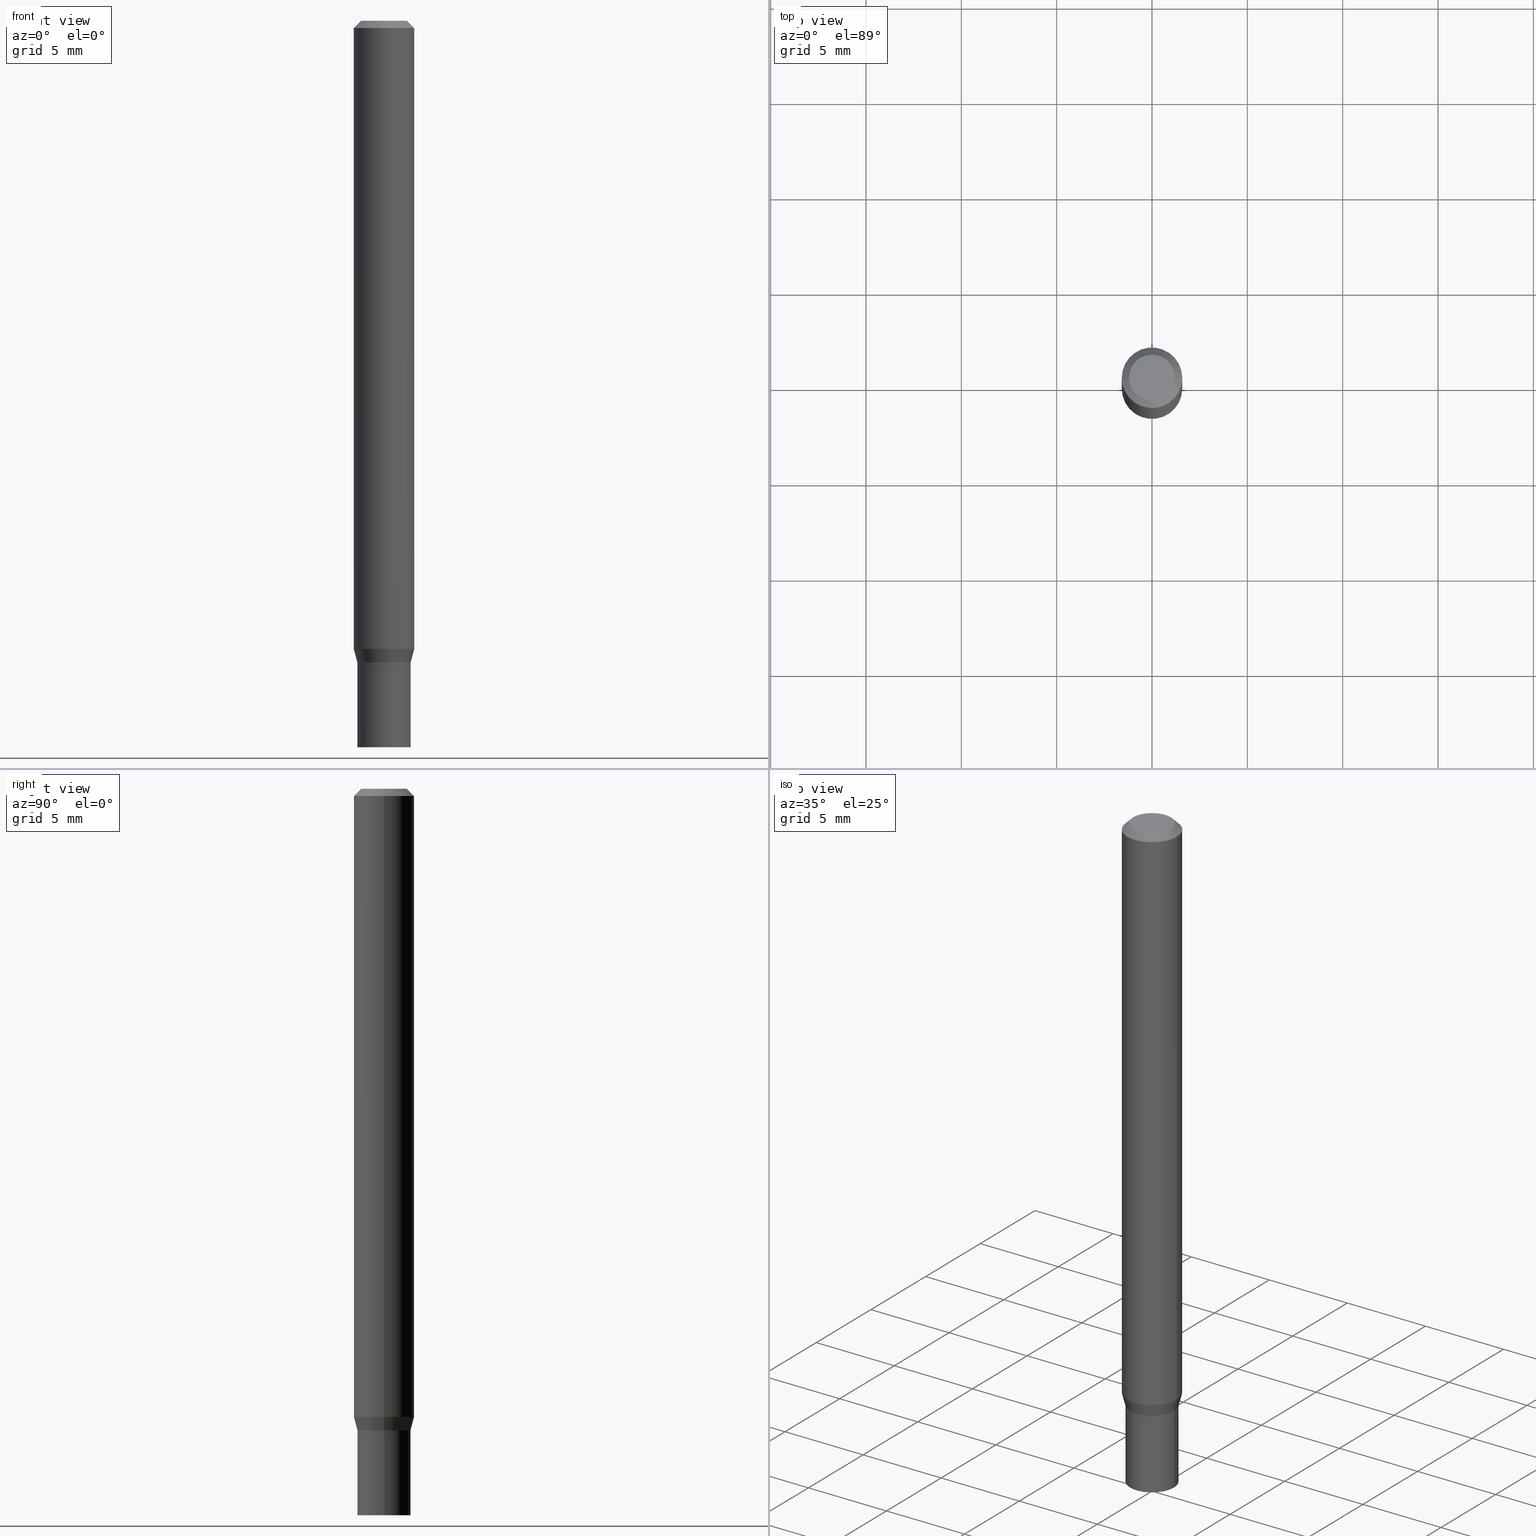
[diagram: canonical four-view strip — front | top / right | iso, engineering-drawing reading convention]
A machine part, canonical four-view strip (front | top / right | iso — engineering-drawing reading convention). The complete STEP part file that produces these views, byte-faithful:
ISO-10303-21;
HEADER;
FILE_DESCRIPTION (( 'STEP AP203' ),
    '1' );
FILE_NAME ('00368.STEP',
    '2024-03-19T21:04:23',
    ( '' ),
    ( '' ),
    'SwSTEP 2.0',
    'SolidWorks 2023',
    '' );
FILE_SCHEMA (( 'CONFIG_CONTROL_DESIGN' ));
ENDSEC;

DATA;
#1 = FACE_OUTER_BOUND ( 'NONE', #27, .T. ) ;
#2 = CC_DESIGN_DATE_AND_TIME_ASSIGNMENT ( #332, #8, ( #19 ) ) ;
#3 = VECTOR ( 'NONE', #213, 39.37007874015747433 ) ;
#4 = VECTOR ( 'NONE', #350, 39.37007874015748143 ) ;
#5 = DIRECTION ( 'NONE',  ( 1.000000000000000000, -6.982962677686272233E-15, 0.000000000000000000 ) ) ;
#6 = DATE_AND_TIME ( #440, #172 ) ;
#7 = DIRECTION ( 'NONE',  ( 1.000000000000000000, -6.982962677686262766E-15, 0.000000000000000000 ) ) ;
#8 = DATE_TIME_ROLE ( 'creation_date' ) ;
#9 = DATE_AND_TIME ( #301, #54 ) ;
#10 = CONICAL_SURFACE ( 'NONE', #401, 0.06250000000000000000, 0.7853981633974549403 ) ;
#11 = DIRECTION ( 'NONE',  ( -2.445468806185136877E-29, 3.491481338843145188E-15, 1.000000000000000000 ) ) ;
#12 = CARTESIAN_POINT ( 'NONE',  ( 3.263478121854064959E-29, -4.659381846686178407E-15, -1.334500000000000242 ) ) ;
#13 = APPROVAL_ROLE ( '' ) ;
#14 = CARTESIAN_POINT ( 'NONE',  ( -0.05499999999999991007, -4.159904970144704999E-15, -1.325000000000000178 ) ) ;
#15 = CARTESIAN_POINT ( 'NONE',  ( -0.05499999999999991701, 3.907985046680545126E-16, -2.705414299640194158E-30 ) ) ;
#16 = AXIS2_PLACEMENT_3D ( 'NONE', #45, #78, #269 ) ;
#17 = FACE_OUTER_BOUND ( 'NONE', #103, .T. ) ;
#18 = DIRECTION ( 'NONE',  ( -2.445468806185136597E-29, 3.491481338843145583E-15, 1.000000000000000000 ) ) ;
#19 = PRODUCT_DEFINITION ( 'UNKNOWN', '', #272, #451 ) ;
#20 = FACE_OUTER_BOUND ( 'NONE', #109, .T. ) ;
#21 = AXIS2_PLACEMENT_3D ( 'NONE', #218, #69, #433 ) ;
#22 = ORIENTED_EDGE ( 'NONE', *, *, #87, .T. ) ;
#23 = CARTESIAN_POINT ( 'NONE',  ( 0.06250000000000000000, -4.364351673553916694E-16, 3.047610484872459871E-30 ) ) ;
#24 = EDGE_LOOP ( 'NONE', ( #187, #255, #184, #377 ) ) ;
#25 = ORIENTED_EDGE ( 'NONE', *, *, #455, .F. ) ;
#26 = LINE ( 'NONE', #211, #339 ) ;
#27 = EDGE_LOOP ( 'NONE', ( #345, #61, #312, #248 ) ) ;
#28 =( CONVERSION_BASED_UNIT ( 'INCH', #192 ) LENGTH_UNIT ( ) NAMED_UNIT ( #329 ) );
#29 = AXIS2_PLACEMENT_3D ( 'NONE', #89, #298, #43 ) ;
#30 = CC_DESIGN_SECURITY_CLASSIFICATION ( #101, ( #272 ) ) ;
#31 = ORIENTED_EDGE ( 'NONE', *, *, #432, .F. ) ;
#32 = DIRECTION ( 'NONE',  ( -2.445468806185136597E-29, 3.491481338843145583E-15, 1.000000000000000000 ) ) ;
#33 = EDGE_CURVE ( 'NONE', #212, #378, #367, .T. ) ;
#34 = ORIENTED_EDGE ( 'NONE', *, *, #259, .F. ) ;
#35 = LINE ( 'NONE', #427, #4 ) ;
#36 = CARTESIAN_POINT ( 'NONE',  ( 0.000000000000000000, 0.000000000000000000, 0.000000000000000000 ) ) ;
#37 = ADVANCED_FACE ( 'NONE', ( #161 ), #436, .T. ) ;
#38 = APPROVAL_PERSON_ORGANIZATION ( #235, #307, #13 ) ;
#39 = CYLINDRICAL_SURFACE ( 'NONE', #327, 0.05500000000000000028 ) ;
#40 = DIRECTION ( 'NONE',  ( -2.445468806185136597E-29, 3.491481338843145583E-15, 1.000000000000000000 ) ) ;
#41 = ADVANCED_FACE ( 'NONE', ( #207 ), #338, .T. ) ;
#42 = CALENDAR_DATE ( 2024, 19, 3 ) ;
#43 = DIRECTION ( 'NONE',  ( 1.000000000000000000, -6.982962677686273810E-15, 0.000000000000000000 ) ) ;
#44 = CIRCLE ( 'NONE', #382, 0.06250000000000000000 ) ;
#45 = CARTESIAN_POINT ( 'NONE',  ( 3.316907271900976096E-16, 0.04749999999999999362, -2.653275547260257586E-16 ) ) ;
#46 = EDGE_CURVE ( 'NONE', #222, #146, #266, .T. ) ;
#47 = DIRECTION ( 'NONE',  ( 1.000000000000000000, -6.982962677686270655E-15, 0.000000000000000000 ) ) ;
#48 = APPROVAL_STATUS ( 'not_yet_approved' ) ;
#49 = DIRECTION ( 'NONE',  ( 1.000000000000000000, -6.982962677686272233E-15, 0.000000000000000000 ) ) ;
#50 = DIRECTION ( 'NONE',  ( -2.445468806185136597E-29, 3.491481338843145583E-15, 1.000000000000000000 ) ) ;
#51 = PERSON_AND_ORGANIZATION ( #224, #82 ) ;
#52 = CIRCLE ( 'NONE', #204, 0.06250000000000000000 ) ;
#53 = CARTESIAN_POINT ( 'NONE',  ( 0.06250000000000000000, -4.811533449433679005E-16, -0.01499999999999999944 ) ) ;
#54 = LOCAL_TIME ( 17, 4, 23.00000000000000000, #74 ) ;
#55 = CC_DESIGN_PERSON_AND_ORGANIZATION_ASSIGNMENT ( #437, #238, ( #272 ) ) ;
#56 = ORIENTED_EDGE ( 'NONE', *, *, #259, .T. ) ;
#57 = AXIS2_PLACEMENT_3D ( 'NONE', #296, #155, #159 ) ;
#58 = EDGE_CURVE ( 'NONE', #146, #319, #127, .T. ) ;
#59 = VERTEX_POINT ( 'NONE', #166 ) ;
#60 = CYLINDRICAL_SURFACE ( 'NONE', #334, 0.05499999999999991701 ) ;
#61 = ORIENTED_EDGE ( 'NONE', *, *, #113, .T. ) ;
#62 = PLANE ( 'NONE',  #240 ) ;
#63 = DIRECTION ( 'NONE',  ( 1.000000000000000000, -6.982962677686267499E-15, 4.852736867747366768E-29 ) ) ;
#64 = ORIENTED_EDGE ( 'NONE', *, *, #215, .F. ) ;
#65 = DIRECTION ( 'NONE',  ( -2.445468806185136597E-29, 3.491481338843145583E-15, 1.000000000000000000 ) ) ;
#66 = VECTOR ( 'NONE', #11, 39.37007874015748143 ) ;
#67 = APPROVAL_PERSON_ORGANIZATION ( #51, #434, #297 ) ;
#68 = EDGE_LOOP ( 'NONE', ( #421, #97, #353, #315 ) ) ;
#69 = DIRECTION ( 'NONE',  ( -2.445468806185136597E-29, 3.491481338843145583E-15, 1.000000000000000000 ) ) ;
#70 = CARTESIAN_POINT ( 'NONE',  ( 0.000000000000000000, 0.000000000000000000, 0.000000000000000000 ) ) ;
#71 = CARTESIAN_POINT ( 'NONE',  ( 0.000000000000000000, 0.000000000000000000, 0.000000000000000000 ) ) ;
#72 = EDGE_CURVE ( 'NONE', #145, #279, #261, .T. ) ;
#73 = VECTOR ( 'NONE', #241, 39.37007874015748143 ) ;
#74 = COORDINATED_UNIVERSAL_TIME_OFFSET ( 5, 0, .BEHIND. ) ;
#75 = APPROVAL_DATE_TIME ( #168, #411 ) ;
#76 = LINE ( 'NONE', #169, #90 ) ;
#77 = PERSON_AND_ORGANIZATION ( #224, #82 ) ;
#78 = DIRECTION ( 'NONE',  ( 2.438088387897960049E-29, -3.491481338843145188E-15, -1.000000000000000000 ) ) ;
#79 = CARTESIAN_POINT ( 'NONE',  ( 3.264700856257157760E-29, -4.661127587355599122E-15, -1.335000000000000187 ) ) ;
#80 = VERTEX_POINT ( 'NONE', #442 ) ;
#81 = COORDINATED_UNIVERSAL_TIME_OFFSET ( 5, 0, .BEHIND. ) ;
#82 = ORGANIZATION ( 'UNSPECIFIED', 'UNSPECIFIED', '' ) ;
#83 = ADVANCED_FACE ( 'NONE', ( #84 ), #208, .T. ) ;
#84 = FACE_OUTER_BOUND ( 'NONE', #251, .T. ) ;
#85 = PERSON_AND_ORGANIZATION_ROLE ( 'classification_officer' ) ;
#86 = LINE ( 'NONE', #365, #309 ) ;
#87 = EDGE_CURVE ( 'NONE', #319, #146, #449, .T. ) ;
#88 = DIRECTION ( 'NONE',  ( 1.000000000000000000, -6.982962677686266711E-15, 4.876176775795936353E-29 ) ) ;
#89 = CARTESIAN_POINT ( 'NONE',  ( 3.240246168195306775E-29, -4.626212773967169051E-15, -1.325000000000000178 ) ) ;
#90 = VECTOR ( 'NONE', #337, 39.37007874015747433 ) ;
#91 = DIRECTION ( 'NONE',  ( -2.438088387897960049E-29, 3.491481338843145188E-15, 1.000000000000000000 ) ) ;
#92 = CARTESIAN_POINT ( 'NONE',  ( 0.06250000000000000000, -4.964920048195750682E-15, -1.297009618943233411 ) ) ;
#93 = ORIENTED_EDGE ( 'NONE', *, *, #99, .T. ) ;
#94 = EDGE_LOOP ( 'NONE', ( #284, #464 ) ) ;
#95 = LINE ( 'NONE', #23, #73 ) ;
#96 = ADVANCED_FACE ( 'NONE', ( #200 ), #461, .T. ) ;
#97 = ORIENTED_EDGE ( 'NONE', *, *, #46, .T. ) ;
#98 = LINE ( 'NONE', #372, #179 ) ;
#99 = EDGE_CURVE ( 'NONE', #249, #59, #100, .T. ) ;
#100 = CIRCLE ( 'NONE', #239, 0.06250000000000000000 ) ;
#101 = SECURITY_CLASSIFICATION ( '', '', #267 ) ;
#102 = ORIENTED_EDGE ( 'NONE', *, *, #343, .T. ) ;
#103 = EDGE_LOOP ( 'NONE', ( #314, #347 ) ) ;
#104 = CARTESIAN_POINT ( 'NONE',  ( 3.263478121854064959E-29, -4.659381846686178407E-15, -1.334500000000000242 ) ) ;
#105 = DIRECTION ( 'NONE',  ( 1.000000000000000000, -6.982962677686265922E-15, 4.876176775795935793E-29 ) ) ;
#106 = ORIENTED_EDGE ( 'NONE', *, *, #33, .T. ) ;
#107 = ORIENTED_EDGE ( 'NONE', *, *, #295, .T. ) ;
#108 = ADVANCED_FACE ( 'NONE', ( #164 ), #300, .F. ) ;
#109 = EDGE_LOOP ( 'NONE', ( #290, #194, #180, #153 ) ) ;
#110 = FACE_OUTER_BOUND ( 'NONE', #94, .T. ) ;
#111 = AXIS2_PLACEMENT_3D ( 'NONE', #369, #333, #202 ) ;
#112 = CARTESIAN_POINT ( 'NONE',  ( 3.840629472727772786E-16, 0.05499999999999534428, -1.335000000000000409 ) ) ;
#113 = EDGE_CURVE ( 'NONE', #59, #249, #52, .T. ) ;
#114 = DIRECTION ( 'NONE',  ( 1.000000000000000000, -6.982962677686266711E-15, 4.876176775795935793E-29 ) ) ;
#115 = PERSON_AND_ORGANIZATION ( #224, #82 ) ;
#116 = AXIS2_PLACEMENT_3D ( 'NONE', #170, #50, #302 ) ;
#117 = AXIS2_PLACEMENT_3D ( 'NONE', #275, #91, #375 ) ;
#118 = ADVANCED_BREP_SHAPE_REPRESENTATION ( '00368', ( #133, #120, #352 ), #463 ) ;
#119 = APPROVAL_DATE_TIME ( #6, #434 ) ;
#120 = MANIFOLD_SOLID_BREP ( 'Body-Move/Copy2[2]', #257 ) ;
#121 = DIRECTION ( 'NONE',  ( -2.445468806185136597E-29, 3.491481338843145583E-15, 1.000000000000000000 ) ) ;
#122 = ADVANCED_FACE ( 'NONE', ( #1 ), #322, .T. ) ;
#123 = SHAPE_DEFINITION_REPRESENTATION ( #142, #118 ) ;
#124 = FACE_OUTER_BOUND ( 'NONE', #217, .T. ) ;
#125 = DIRECTION ( 'NONE',  ( -2.445468806185136597E-29, 3.491481338843145583E-15, 1.000000000000000000 ) ) ;
#126 = DIRECTION ( 'NONE',  ( -2.445468806185136597E-29, 3.491481338843145583E-15, 1.000000000000000000 ) ) ;
#127 = CIRCLE ( 'NONE', #29, 0.05499999999999991007 ) ;
#128 = PERSON_AND_ORGANIZATION_ROLE ( 'creator' ) ;
#129 = CIRCLE ( 'NONE', #438, 0.05449999999999999983 ) ;
#130 = CARTESIAN_POINT ( 'NONE',  ( 3.668203209277705088E-31, -5.237222008264718399E-17, -0.01499999999999999944 ) ) ;
#131 = EDGE_CURVE ( 'NONE', #390, #80, #197, .T. ) ;
#132 = CARTESIAN_POINT ( 'NONE',  ( 0.000000000000000000, 0.000000000000000000, 0.000000000000000000 ) ) ;
#133 = MANIFOLD_SOLID_BREP ( 'Body-Move/Copy2[1]', #435 ) ;
#134 = DIRECTION ( 'NONE',  ( -2.445468806185136597E-29, 3.491481338843145583E-15, 1.000000000000000000 ) ) ;
#135 = DIRECTION ( 'NONE',  ( -2.445468806185136877E-29, 3.491481338843145188E-15, 1.000000000000000000 ) ) ;
#136 = AXIS2_PLACEMENT_3D ( 'NONE', #439, #121, #264 ) ;
#137 = CARTESIAN_POINT ( 'NONE',  ( 3.264700856257157760E-29, -4.661127587355599122E-15, -1.335000000000000187 ) ) ;
#138 = CC_DESIGN_APPROVAL ( #434, ( #101 ) ) ;
#139 = APPLICATION_CONTEXT ( 'configuration controlled 3d designs of mechanical parts and assemblies' ) ;
#140 = VERTEX_POINT ( 'NONE', #219 ) ;
#141 = LINE ( 'NONE', #53, #189 ) ;
#142 = PRODUCT_DEFINITION_SHAPE ( 'NONE', 'NONE',  #19 ) ;
#143 = ORIENTED_EDGE ( 'NONE', *, *, #236, .F. ) ;
#144 = CARTESIAN_POINT ( 'NONE',  ( -0.05449999999999999983, -4.271232569192234159E-15, -1.335000000000000187 ) ) ;
#145 = VERTEX_POINT ( 'NONE', #406 ) ;
#146 = VERTEX_POINT ( 'NONE', #14 ) ;
#147 = DIRECTION ( 'NONE',  ( 1.000000000000000000, -6.982962677686266711E-15, 4.876176775795935793E-29 ) ) ;
#148 = CIRCLE ( 'NONE', #444, 0.05499999999999992395 ) ;
#149 = VERTEX_POINT ( 'NONE', #304 ) ;
#150 = DIRECTION ( 'NONE',  ( -2.445468806185136597E-29, 3.491481338843145583E-15, 1.000000000000000000 ) ) ;
#151 = EDGE_CURVE ( 'NONE', #140, #191, #44, .T. ) ;
#152 = ORIENTED_EDGE ( 'NONE', *, *, #244, .F. ) ;
#153 = ORIENTED_EDGE ( 'NONE', *, *, #320, .F. ) ;
#154 = CYLINDRICAL_SURFACE ( 'NONE', #408, 0.05499999999999991701 ) ;
#155 = DIRECTION ( 'NONE',  ( -2.445468806185136597E-29, 3.491481338843145583E-15, 1.000000000000000000 ) ) ;
#156 = AXIS2_PLACEMENT_3D ( 'NONE', #299, #260, #441 ) ;
#157 = LOCAL_TIME ( 17, 4, 23.00000000000000000, #362 ) ;
#158 =( NAMED_UNIT ( * ) SI_UNIT ( $, .STERADIAN. ) SOLID_ANGLE_UNIT ( ) );
#159 = DIRECTION ( 'NONE',  ( 1.000000000000000000, -6.982962677686266711E-15, 4.876176775795935793E-29 ) ) ;
#160 = PERSON_AND_ORGANIZATION ( #224, #82 ) ;
#161 = FACE_OUTER_BOUND ( 'NONE', #183, .T. ) ;
#162 = APPROVAL_STATUS ( 'not_yet_approved' ) ;
#163 = DIRECTION ( 'NONE',  ( 1.000000000000000000, -6.982962677686266711E-15, 0.000000000000000000 ) ) ;
#164 = FACE_OUTER_BOUND ( 'NONE', #456, .T. ) ;
#165 = DATE_AND_TIME ( #330, #157 ) ;
#166 = CARTESIAN_POINT ( 'NONE',  ( -0.06250000000000000000, -4.084395670990296396E-15, -1.297009618943233411 ) ) ;
#167 = EDGE_CURVE ( 'NONE', #146, #59, #76, .T. ) ;
#168 = DATE_AND_TIME ( #404, #374 ) ;
#169 = CARTESIAN_POINT ( 'NONE',  ( -0.05499999999999991007, -4.235414269299114390E-15, -1.325000000000000178 ) ) ;
#170 = CARTESIAN_POINT ( 'NONE',  ( 3.264700856257157760E-29, -4.661127587355599122E-15, -1.335000000000000187 ) ) ;
#171 = CIRCLE ( 'NONE', #425, 0.05500000000000000028 ) ;
#172 = LOCAL_TIME ( 17, 4, 23.00000000000000000, #81 ) ;
#173 = CARTESIAN_POINT ( 'NONE',  ( 0.000000000000000000, 0.000000000000000000, 0.000000000000000000 ) ) ;
#174 = PLANE ( 'NONE',  #117 ) ;
#175 = CARTESIAN_POINT ( 'NONE',  ( 3.668203209277704895E-29, -5.237222008264718177E-15, -1.500000000000000222 ) ) ;
#176 = CARTESIAN_POINT ( 'NONE',  ( 0.05500000000000000028, -3.840629472727446888E-16, 2.681897226687764826E-30 ) ) ;
#177 = CIRCLE ( 'NONE', #111, 0.06250000000000000000 ) ;
#178 = CARTESIAN_POINT ( 'NONE',  ( 3.668203209277705088E-31, -5.237222008264718399E-17, -0.01499999999999999944 ) ) ;
#179 = VECTOR ( 'NONE', #246, 39.37007874015748143 ) ;
#180 = ORIENTED_EDGE ( 'NONE', *, *, #151, .T. ) ;
#181 = EDGE_CURVE ( 'NONE', #59, #191, #86, .T. ) ;
#182 = ORIENTED_EDGE ( 'NONE', *, *, #328, .F. ) ;
#183 = EDGE_LOOP ( 'NONE', ( #216, #452, #25, #34 ) ) ;
#184 = ORIENTED_EDGE ( 'NONE', *, *, #236, .T. ) ;
#185 = LINE ( 'NONE', #176, #361 ) ;
#186 = DIRECTION ( 'NONE',  ( -2.438088387897960049E-29, 3.491481338843145188E-15, 1.000000000000000000 ) ) ;
#187 = ORIENTED_EDGE ( 'NONE', *, *, #167, .F. ) ;
#188 =( LENGTH_UNIT ( ) NAMED_UNIT ( * ) SI_UNIT ( $, .METRE. ) );
#189 = VECTOR ( 'NONE', #341, 39.37007874015748143 ) ;
#190 = VERTEX_POINT ( 'NONE', #232 ) ;
#191 = VERTEX_POINT ( 'NONE', #405 ) ;
#192 = LENGTH_MEASURE_WITH_UNIT ( LENGTH_MEASURE( 0.02539999999999999897 ), #188 );
#193 = ORIENTED_EDGE ( 'NONE', *, *, #46, .F. ) ;
#194 = ORIENTED_EDGE ( 'NONE', *, *, #328, .T. ) ;
#195 = EDGE_CURVE ( 'NONE', #191, #140, #177, .T. ) ;
#196 = CARTESIAN_POINT ( 'NONE',  ( 0.000000000000000000, 0.000000000000000000, 0.000000000000000000 ) ) ;
#197 = CIRCLE ( 'NONE', #292, 0.04749999999999999362 ) ;
#198 = CARTESIAN_POINT ( 'NONE',  ( 3.264700856257157760E-29, -4.661127587355599122E-15, -1.335000000000000187 ) ) ;
#199 = DATE_TIME_ROLE ( 'classification_date' ) ;
#200 = FACE_OUTER_BOUND ( 'NONE', #24, .T. ) ;
#201 = PERSON_AND_ORGANIZATION_ROLE ( 'creator' ) ;
#202 = DIRECTION ( 'NONE',  ( 1.000000000000000000, -6.982962677686266711E-15, 0.000000000000000000 ) ) ;
#203 = CC_DESIGN_PERSON_AND_ORGANIZATION_ASSIGNMENT ( #115, #128, ( #19 ) ) ;
#204 = AXIS2_PLACEMENT_3D ( 'NONE', #392, #40, #7 ) ;
#205 = PERSON_AND_ORGANIZATION ( #224, #82 ) ;
#206 = ADVANCED_FACE ( 'NONE', ( #446 ), #351, .T. ) ;
#207 = FACE_OUTER_BOUND ( 'NONE', #282, .T. ) ;
#208 = CONICAL_SURFACE ( 'NONE', #373, 0.06250000000000000000, 0.7853981633974549403 ) ;
#209 = DIRECTION ( 'NONE',  ( 1.000000000000000000, -6.982962677686262766E-15, 0.000000000000000000 ) ) ;
#210 = ADVANCED_FACE ( 'NONE', ( #124 ), #265, .F. ) ;
#211 = CARTESIAN_POINT ( 'NONE',  ( 0.05499999999999991701, -3.840629472727440972E-16, 2.681897226687760973E-30 ) ) ;
#212 = VERTEX_POINT ( 'NONE', #229 ) ;
#213 = DIRECTION ( 'NONE',  ( 0.2588190451025214611, 1.565188264969621573E-15, 0.9659258262890682012 ) ) ;
#214 = CONICAL_SURFACE ( 'NONE', #21, 0.05499999999999991007, 0.2617993877991501295 ) ;
#215 = EDGE_CURVE ( 'NONE', #222, #190, #360, .T. ) ;
#216 = ORIENTED_EDGE ( 'NONE', *, *, #72, .T. ) ;
#217 = EDGE_LOOP ( 'NONE', ( #417, #102 ) ) ;
#218 = CARTESIAN_POINT ( 'NONE',  ( 3.240246168195306775E-29, -4.626212773967169051E-15, -1.325000000000000178 ) ) ;
#219 = CARTESIAN_POINT ( 'NONE',  ( 0.06250000000000000000, -4.888073874380388472E-16, -0.01499999999999999944 ) ) ;
#220 = ORIENTED_EDGE ( 'NONE', *, *, #230, .F. ) ;
#221 = AXIS2_PLACEMENT_3D ( 'NONE', #342, #18, #391 ) ;
#222 = VERTEX_POINT ( 'NONE', #457 ) ;
#223 = CYLINDRICAL_SURFACE ( 'NONE', #318, 0.05500000000000000028 ) ;
#224 = PERSON ( 'UNSPECIFIED', 'UNSPECIFIED', 'UNSPECIFIED', ('UNSPECIFIED'), ('UNSPECIFIED'), ('UNSPECIFIED') ) ;
#225 = DIRECTION ( 'NONE',  ( 1.000000000000000000, 0.000000000000000000, 0.000000000000000000 ) ) ;
#226 = FACE_OUTER_BOUND ( 'NONE', #426, .T. ) ;
#227 = VECTOR ( 'NONE', #313, 39.37007874015748143 ) ;
#228 = APPROVAL_ROLE ( '' ) ;
#229 = CARTESIAN_POINT ( 'NONE',  ( -0.05500000000000000028, -4.558376293142103594E-15, -1.500000000000000222 ) ) ;
#230 = EDGE_CURVE ( 'NONE', #243, #149, #414, .T. ) ;
#231 = COORDINATED_UNIVERSAL_TIME_OFFSET ( 5, 0, .BEHIND. ) ;
#232 = CARTESIAN_POINT ( 'NONE',  ( 0.05499999999999992395, -5.043444793958922603E-15, -1.334500000000000242 ) ) ;
#233 = DIRECTION ( 'NONE',  ( -2.445468806185136597E-29, 3.491481338843145583E-15, 1.000000000000000000 ) ) ;
#234 = PERSON_AND_ORGANIZATION ( #224, #82 ) ;
#235 = PERSON_AND_ORGANIZATION ( #224, #82 ) ;
#236 = EDGE_CURVE ( 'NONE', #319, #249, #348, .T. ) ;
#237 = CARTESIAN_POINT ( 'NONE',  ( 3.668203209277705088E-31, -5.237222008264718399E-17, -0.01499999999999999944 ) ) ;
#238 = PERSON_AND_ORGANIZATION_ROLE ( 'design_supplier' ) ;
#239 = AXIS2_PLACEMENT_3D ( 'NONE', #403, #233, #335 ) ;
#240 = AXIS2_PLACEMENT_3D ( 'NONE', #112, #386, #294 ) ;
#241 = DIRECTION ( 'NONE',  ( -2.445468806185136877E-29, 3.491481338843145188E-15, 1.000000000000000000 ) ) ;
#242 = CARTESIAN_POINT ( 'NONE',  ( -0.05449999999999999983, -4.273881796366344571E-15, -1.335000000000000187 ) ) ;
#243 = VERTEX_POINT ( 'NONE', #306 ) ;
#244 = EDGE_CURVE ( 'NONE', #149, #243, #171, .T. ) ;
#245 = EDGE_LOOP ( 'NONE', ( #31, #106, #107, #220 ) ) ;
#246 = DIRECTION ( 'NONE',  ( -0.7071067811865522357, 2.468850131082306364E-15, -0.7071067811865427988 ) ) ;
#247 = CC_DESIGN_APPROVAL ( #411, ( #19 ) ) ;
#248 = ORIENTED_EDGE ( 'NONE', *, *, #195, .F. ) ;
#249 = VERTEX_POINT ( 'NONE', #92 ) ;
#250 = CARTESIAN_POINT ( 'NONE',  ( 0.05500000000000000028, -5.621284955537463161E-15, -1.500000000000000222 ) ) ;
#251 = EDGE_LOOP ( 'NONE', ( #182, #277, #428, #286 ) ) ;
#252 = ORIENTED_EDGE ( 'NONE', *, *, #99, .F. ) ;
#253 = ORIENTED_EDGE ( 'NONE', *, *, #254, .F. ) ;
#254 = EDGE_CURVE ( 'NONE', #279, #222, #413, .T. ) ;
#255 = ORIENTED_EDGE ( 'NONE', *, *, #58, .T. ) ;
#256 = APPLICATION_PROTOCOL_DEFINITION ( 'international standard', 'config_control_design', 1994, #139 ) ;
#257 = CLOSED_SHELL ( 'NONE', ( #324, #37, #289, #41, #358, #96, #122, #83, #210, #340, #206, #364 ) ) ;
#258 =( NAMED_UNIT ( * ) PLANE_ANGLE_UNIT ( ) SI_UNIT ( $, .RADIAN. ) );
#259 = EDGE_CURVE ( 'NONE', #145, #190, #346, .T. ) ;
#260 = DIRECTION ( 'NONE',  ( -2.445468806185136597E-29, 3.491481338843145583E-15, 1.000000000000000000 ) ) ;
#261 = CIRCLE ( 'NONE', #116, 0.05449999999999999983 ) ;
#262 = EDGE_CURVE ( 'NONE', #249, #140, #95, .T. ) ;
#263 = APPLICATION_PROTOCOL_DEFINITION ( 'international standard', 'config_control_design', 1994, #424 ) ;
#264 = DIRECTION ( 'NONE',  ( 1.000000000000000000, -6.982962677686273810E-15, 0.000000000000000000 ) ) ;
#265 = PLANE ( 'NONE',  #16 ) ;
#266 = LINE ( 'NONE', #15, #66 ) ;
#267 = SECURITY_CLASSIFICATION_LEVEL ( 'unclassified' ) ;
#268 = EDGE_CURVE ( 'NONE', #190, #319, #26, .T. ) ;
#269 = DIRECTION ( 'NONE',  ( -1.000000000000000000, 6.982962677686265922E-15, -4.876176775795935793E-29 ) ) ;
#270 = DIRECTION ( 'NONE',  ( -2.445468806185136597E-29, 3.491481338843145583E-15, 1.000000000000000000 ) ) ;
#271 = AXIS2_PLACEMENT_3D ( 'NONE', #79, #270, #47 ) ;
#272 = PRODUCT_DEFINITION_FORMATION_WITH_SPECIFIED_SOURCE ( 'ANY', '', #381, .NOT_KNOWN. ) ;
#273 = UNCERTAINTY_MEASURE_WITH_UNIT (LENGTH_MEASURE( 1.000000000000000082E-05 ), #28, 'distance_accuracy_value', 'NONE');
#274 = DIRECTION ( 'NONE',  ( -2.445468806185136597E-29, 3.491481338843145583E-15, 1.000000000000000000 ) ) ;
#275 = CARTESIAN_POINT ( 'NONE',  ( 3.264700856257157760E-29, -4.661127587355599122E-15, -1.335000000000000187 ) ) ;
#276 = DIRECTION ( 'NONE',  ( -2.445468806185136597E-29, 3.491481338843145583E-15, 1.000000000000000000 ) ) ;
#277 = ORIENTED_EDGE ( 'NONE', *, *, #131, .F. ) ;
#278 = CARTESIAN_POINT ( 'NONE',  ( 0.05449999999999999983, -5.041699053289501100E-15, -1.335000000000000187 ) ) ;
#279 = VERTEX_POINT ( 'NONE', #144 ) ;
#280 = DIRECTION ( 'NONE',  ( -1.000000000000000000, 6.982962677686266711E-15, 0.000000000000000000 ) ) ;
#281 = CC_DESIGN_DATE_AND_TIME_ASSIGNMENT ( #9, #199, ( #101 ) ) ;
#282 = EDGE_LOOP ( 'NONE', ( #93, #458, #465, #430 ) ) ;
#283 = VECTOR ( 'NONE', #308, 39.37007874015748143 ) ;
#284 = ORIENTED_EDGE ( 'NONE', *, *, #244, .T. ) ;
#285 = DIRECTION ( 'NONE',  ( 1.000000000000000000, -6.982962677686270655E-15, 0.000000000000000000 ) ) ;
#286 = ORIENTED_EDGE ( 'NONE', *, *, #195, .T. ) ;
#287 = CARTESIAN_POINT ( 'NONE',  ( -0.04749999999999999362, 3.578768372314206562E-16, -1.989643822619551895E-16 ) ) ;
#288 = ORIENTED_EDGE ( 'NONE', *, *, #268, .T. ) ;
#289 = ADVANCED_FACE ( 'NONE', ( #20 ), #10, .T. ) ;
#290 = ORIENTED_EDGE ( 'NONE', *, *, #343, .F. ) ;
#291 = FACE_OUTER_BOUND ( 'NONE', #394, .T. ) ;
#292 = AXIS2_PLACEMENT_3D ( 'NONE', #387, #397, #63 ) ;
#293 = CIRCLE ( 'NONE', #310, 0.05500000000000000028 ) ;
#294 = DIRECTION ( 'NONE',  ( -1.000000000000000000, 6.982962677686265922E-15, -4.876176775795935793E-29 ) ) ;
#295 = EDGE_CURVE ( 'NONE', #378, #149, #185, .T. ) ;
#296 = CARTESIAN_POINT ( 'NONE',  ( 0.000000000000000000, 0.000000000000000000, 0.000000000000000000 ) ) ;
#297 = APPROVAL_ROLE ( '' ) ;
#298 = DIRECTION ( 'NONE',  ( -2.445468806185136597E-29, 3.491481338843145583E-15, 1.000000000000000000 ) ) ;
#299 = CARTESIAN_POINT ( 'NONE',  ( 3.264700856257157760E-29, -4.661127587355599122E-15, -1.335000000000000187 ) ) ;
#300 = PLANE ( 'NONE',  #393 ) ;
#301 = CALENDAR_DATE ( 2024, 19, 3 ) ;
#302 = DIRECTION ( 'NONE',  ( 1.000000000000000000, -6.982962677686270655E-15, 0.000000000000000000 ) ) ;
#303 = CC_DESIGN_PERSON_AND_ORGANIZATION_ASSIGNMENT ( #160, #201, ( #272 ) ) ;
#304 = CARTESIAN_POINT ( 'NONE',  ( 0.05500000000000000028, -5.045190534628344107E-15, -1.335000000000000187 ) ) ;
#305 = DIRECTION ( 'NONE',  ( 1.000000000000000000, -6.982962677686266711E-15, 4.876176775795935793E-29 ) ) ;
#306 = CARTESIAN_POINT ( 'NONE',  ( -0.05500000000000000028, -4.558376293142103594E-15, -1.335000000000000187 ) ) ;
#307 = APPROVAL ( #363, 'UNSPECIFIED' ) ;
#308 = DIRECTION ( 'NONE',  ( 0.7071067811865656694, -2.468850131082446387E-15, 0.7071067811865294761 ) ) ;
#309 = VECTOR ( 'NONE', #410, 39.37007874015748143 ) ;
#310 = AXIS2_PLACEMENT_3D ( 'NONE', #325, #396, #357 ) ;
#311 = DIRECTION ( 'NONE',  ( -2.445468806185136877E-29, 3.491481338843145188E-15, 1.000000000000000000 ) ) ;
#312 = ORIENTED_EDGE ( 'NONE', *, *, #262, .T. ) ;
#313 = DIRECTION ( 'NONE',  ( -0.7071067811865656694, 7.493145998870420424E-15, 0.7071067811865294761 ) ) ;
#314 = ORIENTED_EDGE ( 'NONE', *, *, #72, .F. ) ;
#315 = ORIENTED_EDGE ( 'NONE', *, *, #268, .F. ) ;
#316 = FACE_OUTER_BOUND ( 'NONE', #68, .T. ) ;
#317 = AXIS2_PLACEMENT_3D ( 'NONE', #445, #134, #412 ) ;
#318 = AXIS2_PLACEMENT_3D ( 'NONE', #36, #359, #147 ) ;
#319 = VERTEX_POINT ( 'NONE', #422 ) ;
#320 = EDGE_CURVE ( 'NONE', #390, #191, #98, .T. ) ;
#321 = EDGE_LOOP ( 'NONE', ( #193, #466, #288, #355 ) ) ;
#322 = CYLINDRICAL_SURFACE ( 'NONE', #57, 0.06250000000000000000 ) ;
#323 = DIRECTION ( 'NONE',  ( 0.000000000000000000, 0.000000000000000000, 1.000000000000000000 ) ) ;
#324 = ADVANCED_FACE ( 'NONE', ( #316 ), #60, .T. ) ;
#325 = CARTESIAN_POINT ( 'NONE',  ( 3.668203209277704895E-29, -5.237222008264718177E-15, -1.500000000000000222 ) ) ;
#326 = AXIS2_PLACEMENT_3D ( 'NONE', #175, #371, #336 ) ;
#327 = AXIS2_PLACEMENT_3D ( 'NONE', #196, #398, #114 ) ;
#328 = EDGE_CURVE ( 'NONE', #80, #140, #141, .T. ) ;
#329 = DIMENSIONAL_EXPONENTS ( 1.000000000000000000, 0.000000000000000000, 0.000000000000000000, 0.000000000000000000, 0.000000000000000000, 0.000000000000000000, 0.000000000000000000 ) ;
#330 = CALENDAR_DATE ( 2024, 19, 3 ) ;
#331 = DIRECTION ( 'NONE',  ( -1.000000000000000000, 6.982962677686266711E-15, 0.000000000000000000 ) ) ;
#332 = DATE_AND_TIME ( #42, #415 ) ;
#333 = DIRECTION ( 'NONE',  ( -2.445468806185136597E-29, 3.491481338843145583E-15, 1.000000000000000000 ) ) ;
#334 = AXIS2_PLACEMENT_3D ( 'NONE', #132, #274, #88 ) ;
#335 = DIRECTION ( 'NONE',  ( 1.000000000000000000, -6.982962677686262766E-15, 0.000000000000000000 ) ) ;
#336 = DIRECTION ( 'NONE',  ( 1.000000000000000000, -6.982962677686262766E-15, 0.000000000000000000 ) ) ;
#337 = DIRECTION ( 'NONE',  ( -0.2588190451025214611, 5.211531920934551042E-15, 0.9659258262890682012 ) ) ;
#338 = CYLINDRICAL_SURFACE ( 'NONE', #443, 0.06250000000000000000 ) ;
#339 = VECTOR ( 'NONE', #135, 39.37007874015748143 ) ;
#340 = ADVANCED_FACE ( 'NONE', ( #17 ), #174, .F. ) ;
#341 = DIRECTION ( 'NONE',  ( 0.7071067811865522357, -7.319954787623271823E-15, -0.7071067811865427988 ) ) ;
#342 = CARTESIAN_POINT ( 'NONE',  ( 4.865611903635008365E-45, -6.946804277620623666E-31, -1.989643822619527736E-16 ) ) ;
#343 = EDGE_CURVE ( 'NONE', #80, #390, #450, .T. ) ;
#344 = AXIS2_PLACEMENT_3D ( 'NONE', #12, #126, #49 ) ;
#345 = ORIENTED_EDGE ( 'NONE', *, *, #181, .F. ) ;
#346 = LINE ( 'NONE', #278, #283 ) ;
#347 = ORIENTED_EDGE ( 'NONE', *, *, #423, .F. ) ;
#348 = LINE ( 'NONE', #420, #3 ) ;
#349 = ORIENTED_EDGE ( 'NONE', *, *, #447, .T. ) ;
#350 = DIRECTION ( 'NONE',  ( -2.445468806185136877E-29, 3.491481338843145188E-15, 1.000000000000000000 ) ) ;
#351 = CONICAL_SURFACE ( 'NONE', #156, 0.05449999999999999983, 0.7853981633974739252 ) ;
#352 = AXIS2_PLACEMENT_3D ( 'NONE', #70, #323, #225 ) ;
#353 = ORIENTED_EDGE ( 'NONE', *, *, #87, .F. ) ;
#354 = FACE_OUTER_BOUND ( 'NONE', #321, .T. ) ;
#355 = ORIENTED_EDGE ( 'NONE', *, *, #58, .F. ) ;
#356 = FACE_OUTER_BOUND ( 'NONE', #245, .T. ) ;
#357 = DIRECTION ( 'NONE',  ( 1.000000000000000000, -6.982962677686262766E-15, 0.000000000000000000 ) ) ;
#358 = ADVANCED_FACE ( 'NONE', ( #226 ), #214, .T. ) ;
#359 = DIRECTION ( 'NONE',  ( -2.445468806185136597E-29, 3.491481338843145583E-15, 1.000000000000000000 ) ) ;
#360 = CIRCLE ( 'NONE', #344, 0.05499999999999992395 ) ;
#361 = VECTOR ( 'NONE', #311, 39.37007874015748143 ) ;
#362 = COORDINATED_UNIVERSAL_TIME_OFFSET ( 5, 0, .BEHIND. ) ;
#363 = APPROVAL_STATUS ( 'not_yet_approved' ) ;
#364 = ADVANCED_FACE ( 'NONE', ( #354 ), #154, .T. ) ;
#365 = CARTESIAN_POINT ( 'NONE',  ( -0.06250000000000000000, 4.440892098500626162E-16, -3.074334431409316114E-30 ) ) ;
#366 = CC_DESIGN_PERSON_AND_ORGANIZATION_ASSIGNMENT ( #234, #85, ( #101 ) ) ;
#367 = CIRCLE ( 'NONE', #326, 0.05500000000000000028 ) ;
#368 = APPROVAL_DATE_TIME ( #165, #307 ) ;
#369 = CARTESIAN_POINT ( 'NONE',  ( 3.668203209277705088E-31, -5.237222008264718399E-17, -0.01499999999999999944 ) ) ;
#370 = DIRECTION ( 'NONE',  ( 2.445468806185136597E-29, -3.491481338843145583E-15, -1.000000000000000000 ) ) ;
#371 = DIRECTION ( 'NONE',  ( -2.445468806185136597E-29, 3.491481338843145583E-15, 1.000000000000000000 ) ) ;
#372 = CARTESIAN_POINT ( 'NONE',  ( -0.06250000000000000000, 3.840629472727444916E-16, -0.01499999999999999944 ) ) ;
#373 = AXIS2_PLACEMENT_3D ( 'NONE', #237, #370, #331 ) ;
#374 = LOCAL_TIME ( 17, 4, 23.00000000000000000, #231 ) ;
#375 = DIRECTION ( 'NONE',  ( 1.000000000000000000, -6.982962677686265922E-15, 4.876176775795935793E-29 ) ) ;
#376 = CARTESIAN_POINT ( 'NONE',  ( 3.264700856257157760E-29, -4.661127587355599122E-15, -1.335000000000000187 ) ) ;
#377 = ORIENTED_EDGE ( 'NONE', *, *, #113, .F. ) ;
#378 = VERTEX_POINT ( 'NONE', #250 ) ;
#379 = CC_DESIGN_PERSON_AND_ORGANIZATION_ASSIGNMENT ( #77, #409, ( #381 ) ) ;
#380 = CARTESIAN_POINT ( 'NONE',  ( 3.576687321579069994E-29, -5.368277968210015545E-15, -1.500000000000000222 ) ) ;
#381 = PRODUCT ( '00368', '00368', '', ( #395 ) ) ;
#382 = AXIS2_PLACEMENT_3D ( 'NONE', #130, #400, #163 ) ;
#383 = APPROVAL_PERSON_ORGANIZATION ( #205, #411, #228 ) ;
#384 = ORIENTED_EDGE ( 'NONE', *, *, #423, .T. ) ;
#385 = ORIENTED_EDGE ( 'NONE', *, *, #447, .F. ) ;
#386 = DIRECTION ( 'NONE',  ( 2.438088387897960049E-29, -3.491481338843145188E-15, -1.000000000000000000 ) ) ;
#387 = CARTESIAN_POINT ( 'NONE',  ( 4.865611903635008365E-45, -6.946804277620623666E-31, -1.989643822619527736E-16 ) ) ;
#388 = ORIENTED_EDGE ( 'NONE', *, *, #167, .T. ) ;
#389 = ADVANCED_FACE ( 'NONE', ( #291 ), #223, .T. ) ;
#390 = VERTEX_POINT ( 'NONE', #287 ) ;
#391 = DIRECTION ( 'NONE',  ( 1.000000000000000000, -6.982962677686267499E-15, 4.852736867747366768E-29 ) ) ;
#392 = CARTESIAN_POINT ( 'NONE',  ( 3.171796564447747781E-29, -4.528484880840358223E-15, -1.297009618943233411 ) ) ;
#393 = AXIS2_PLACEMENT_3D ( 'NONE', #380, #186, #105 ) ;
#394 = EDGE_LOOP ( 'NONE', ( #349, #459, #152, #419 ) ) ;
#395 = MECHANICAL_CONTEXT ( 'NONE', #139, 'mechanical' ) ;
#396 = DIRECTION ( 'NONE',  ( -2.445468806185136597E-29, 3.491481338843145583E-15, 1.000000000000000000 ) ) ;
#397 = DIRECTION ( 'NONE',  ( -2.445468806185136597E-29, 3.491481338843145583E-15, 1.000000000000000000 ) ) ;
#398 = DIRECTION ( 'NONE',  ( -2.445468806185136597E-29, 3.491481338843145583E-15, 1.000000000000000000 ) ) ;
#399 = ADVANCED_FACE ( 'NONE', ( #356 ), #39, .T. ) ;
#400 = DIRECTION ( 'NONE',  ( -2.445468806185136597E-29, 3.491481338843145583E-15, 1.000000000000000000 ) ) ;
#401 = AXIS2_PLACEMENT_3D ( 'NONE', #178, #448, #280 ) ;
#402 = COORDINATED_UNIVERSAL_TIME_OFFSET ( 5, 0, .BEHIND. ) ;
#403 = CARTESIAN_POINT ( 'NONE',  ( 3.171796564447747781E-29, -4.528484880840358223E-15, -1.297009618943233411 ) ) ;
#404 = CALENDAR_DATE ( 2024, 19, 3 ) ;
#405 = CARTESIAN_POINT ( 'NONE',  ( -0.06250000000000000000, -1.846339340611440232E-15, -0.01499999999999999944 ) ) ;
#406 = CARTESIAN_POINT ( 'NONE',  ( 0.05449999999999999983, -5.041699053289501100E-15, -1.335000000000000187 ) ) ;
#407 = AXIS2_PLACEMENT_3D ( 'NONE', #137, #453, #209 ) ;
#408 = AXIS2_PLACEMENT_3D ( 'NONE', #71, #150, #431 ) ;
#409 = PERSON_AND_ORGANIZATION_ROLE ( 'design_owner' ) ;
#410 = DIRECTION ( 'NONE',  ( -2.445468806185136877E-29, 3.491481338843145188E-15, 1.000000000000000000 ) ) ;
#411 = APPROVAL ( #48, 'UNSPECIFIED' ) ;
#412 = DIRECTION ( 'NONE',  ( 1.000000000000000000, -6.982962677686273810E-15, 0.000000000000000000 ) ) ;
#413 = LINE ( 'NONE', #242, #227 ) ;
#414 = CIRCLE ( 'NONE', #407, 0.05500000000000000028 ) ;
#415 = LOCAL_TIME ( 17, 4, 23.00000000000000000, #402 ) ;
#416 = DIRECTION ( 'NONE',  ( 1.000000000000000000, -6.982962677686262766E-15, 0.000000000000000000 ) ) ;
#417 = ORIENTED_EDGE ( 'NONE', *, *, #131, .T. ) ;
#418 = ADVANCED_FACE ( 'NONE', ( #110 ), #62, .F. ) ;
#419 = ORIENTED_EDGE ( 'NONE', *, *, #295, .F. ) ;
#420 = CARTESIAN_POINT ( 'NONE',  ( 0.05499999999999991007, -5.010275721239913246E-15, -1.325000000000000178 ) ) ;
#421 = ORIENTED_EDGE ( 'NONE', *, *, #455, .T. ) ;
#422 = CARTESIAN_POINT ( 'NONE',  ( 0.05499999999999991007, -5.010275721239913246E-15, -1.325000000000000178 ) ) ;
#423 = EDGE_CURVE ( 'NONE', #279, #145, #129, .T. ) ;
#424 = APPLICATION_CONTEXT ( 'configuration controlled 3d designs of mechanical parts and assemblies' ) ;
#425 = AXIS2_PLACEMENT_3D ( 'NONE', #376, #276, #416 ) ;
#426 = EDGE_LOOP ( 'NONE', ( #22, #388, #252, #143 ) ) ;
#427 = CARTESIAN_POINT ( 'NONE',  ( -0.05500000000000000028, 3.907985046680551042E-16, -2.705414299640198362E-30 ) ) ;
#428 = ORIENTED_EDGE ( 'NONE', *, *, #320, .T. ) ;
#429 = ORIENTED_EDGE ( 'NONE', *, *, #33, .F. ) ;
#430 = ORIENTED_EDGE ( 'NONE', *, *, #262, .F. ) ;
#431 = DIRECTION ( 'NONE',  ( 1.000000000000000000, -6.982962677686266711E-15, 4.876176775795936353E-29 ) ) ;
#432 = EDGE_CURVE ( 'NONE', #212, #243, #35, .T. ) ;
#433 = DIRECTION ( 'NONE',  ( 1.000000000000000000, -6.982962677686273810E-15, 0.000000000000000000 ) ) ;
#434 = APPROVAL ( #162, 'UNSPECIFIED' ) ;
#435 = CLOSED_SHELL ( 'NONE', ( #389, #108, #399, #418 ) ) ;
#436 = CONICAL_SURFACE ( 'NONE', #271, 0.05449999999999999983, 0.7853981633974739252 ) ;
#437 = PERSON_AND_ORGANIZATION ( #224, #82 ) ;
#438 = AXIS2_PLACEMENT_3D ( 'NONE', #198, #65, #285 ) ;
#439 = CARTESIAN_POINT ( 'NONE',  ( 3.240246168195306775E-29, -4.626212773967169051E-15, -1.325000000000000178 ) ) ;
#440 = CALENDAR_DATE ( 2024, 19, 3 ) ;
#441 = DIRECTION ( 'NONE',  ( 1.000000000000000000, -6.982962677686270655E-15, 0.000000000000000000 ) ) ;
#442 = CARTESIAN_POINT ( 'NONE',  ( 0.04749999999999999362, -4.035134999187581581E-16, -1.989643822619502098E-16 ) ) ;
#443 = AXIS2_PLACEMENT_3D ( 'NONE', #173, #125, #305 ) ;
#444 = AXIS2_PLACEMENT_3D ( 'NONE', #104, #32, #5 ) ;
#445 = CARTESIAN_POINT ( 'NONE',  ( 3.240246168195306775E-29, -4.626212773967169051E-15, -1.325000000000000178 ) ) ;
#446 = FACE_OUTER_BOUND ( 'NONE', #454, .T. ) ;
#447 = EDGE_CURVE ( 'NONE', #378, #212, #293, .T. ) ;
#448 = DIRECTION ( 'NONE',  ( 2.445468806185136597E-29, -3.491481338843145583E-15, -1.000000000000000000 ) ) ;
#449 = CIRCLE ( 'NONE', #317, 0.05499999999999991007 ) ;
#450 = CIRCLE ( 'NONE', #221, 0.04749999999999999362 ) ;
#451 = DESIGN_CONTEXT ( 'detailed design', #424, 'design' ) ;
#452 = ORIENTED_EDGE ( 'NONE', *, *, #254, .T. ) ;
#453 = DIRECTION ( 'NONE',  ( -2.445468806185136597E-29, 3.491481338843145583E-15, 1.000000000000000000 ) ) ;
#454 = EDGE_LOOP ( 'NONE', ( #253, #384, #56, #64 ) ) ;
#455 = EDGE_CURVE ( 'NONE', #190, #222, #148, .T. ) ;
#456 = EDGE_LOOP ( 'NONE', ( #385, #429 ) ) ;
#457 = CARTESIAN_POINT ( 'NONE',  ( -0.05499999999999992395, -4.268583342018123747E-15, -1.334500000000000242 ) ) ;
#458 = ORIENTED_EDGE ( 'NONE', *, *, #181, .T. ) ;
#459 = ORIENTED_EDGE ( 'NONE', *, *, #432, .T. ) ;
#460 = PRODUCT_RELATED_PRODUCT_CATEGORY ( 'detail', '', ( #381 ) ) ;
#461 = CONICAL_SURFACE ( 'NONE', #136, 0.05499999999999991007, 0.2617993877991501295 ) ;
#462 = CC_DESIGN_APPROVAL ( #307, ( #272 ) ) ;
#463 =( GEOMETRIC_REPRESENTATION_CONTEXT ( 3 ) GLOBAL_UNCERTAINTY_ASSIGNED_CONTEXT ( ( #273 ) ) GLOBAL_UNIT_ASSIGNED_CONTEXT ( ( #28, #258, #158 ) ) REPRESENTATION_CONTEXT ( 'NONE', 'WORKASPACE' ) );
#464 = ORIENTED_EDGE ( 'NONE', *, *, #230, .T. ) ;
#465 = ORIENTED_EDGE ( 'NONE', *, *, #151, .F. ) ;
#466 = ORIENTED_EDGE ( 'NONE', *, *, #215, .T. ) ;
ENDSEC;
END-ISO-10303-21;
